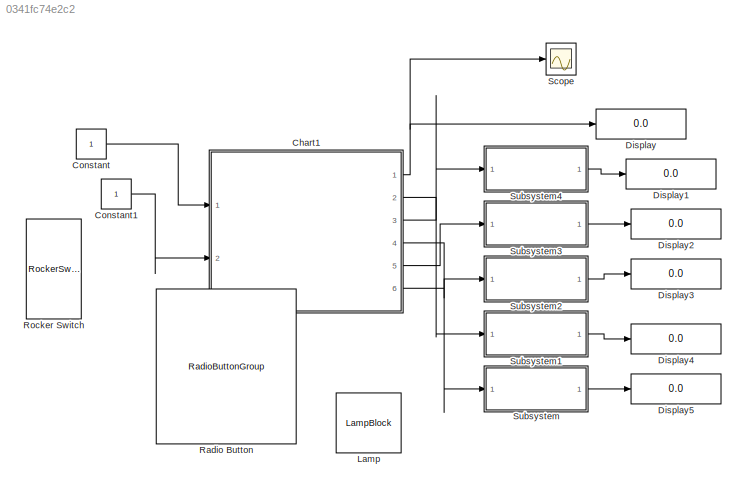
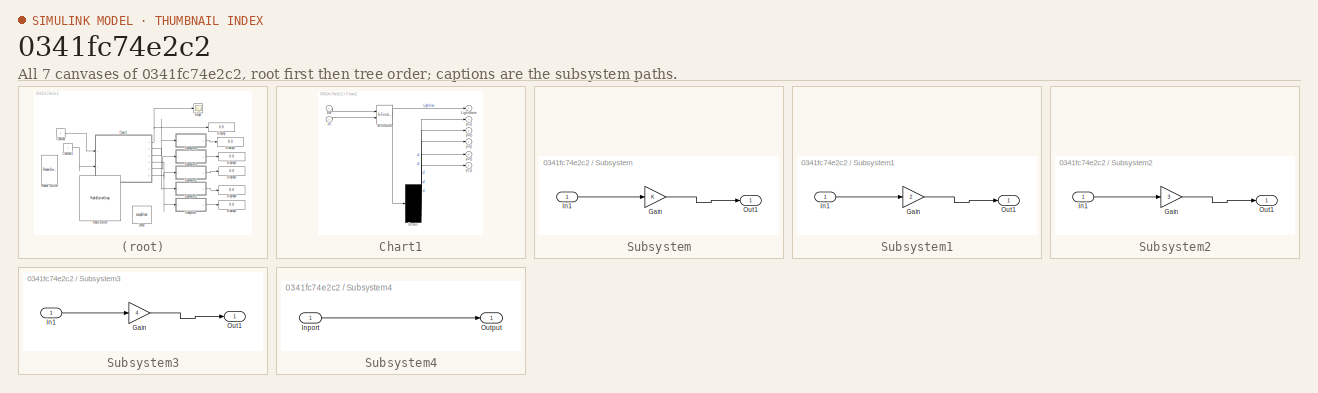
[diagram: thumbnail index - all 7 canvases of the model, root first then tree order]
MODEL slx_0341fc74e2c2
KIND model
CONFIG AbsTol = auto
CONFIG EnableMultiTasking = off
CONFIG FixedStep = auto
CONFIG MaxStep = auto
CONFIG MinStep = auto
CONFIG RelTol = 1e-3
CONFIG SampleTimeConstraint = Unconstrained
CONFIG Solver = VariableStepAuto
CONFIG SolverName = VariableStepAuto
CONFIG StartTime = 0.0
CONFIG StopTime = inf
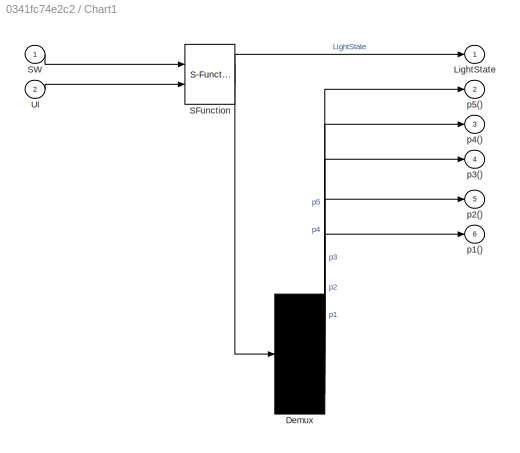
BLOCK [SubSystem] Chart1
  ErrorFcn = Stateflow.Translate.translate
  PermitHierarchicalResolution = ExplicitOnly
  PortSchema = {"entries":[{"content":{"sides":[{"content":{"connectorIds":["In1","In2"]},"type":"ConnectorPlacement.EquallySpacedRectSide","uuid":"6c00c208-a287-4450-85a3-dae870942672"},{"content":{"connectorIds":["Out1","Out2","Out4","Out5","Out6","Out3"],"side":"RIGHT"},"type":"ConnectorPlacement.EquallySpacedRectSide","uuid":"88742340-dddc-44b8-8949-c8c9aae9c67f"},{"content":{"connectorIds":[],"side":"TOP"},...<+283ch>
  Ports = [2, 6]
  RequestExecContextInheritance = off
  SFBlockType = Chart
  TreatAsAtomicUnit = on
BLOCK [Demux] Chart1/ Demux 
  Outputs = 5
  Ports = [1, 5]
BLOCK [S-Function] Chart1/ SFunction 
  EnableBusSupport = on
  FunctionName = sf_sfun
  PortCounts = [2 2]
  Ports = [2, 2]
  SFcnIsStateOwnerBlock = off
  SFunctionDeploymentMode = off
  Tag = Stateflow S-Function 1
BLOCK [Outport] Chart1/LightState
BLOCK [Inport] Chart1/SW
BLOCK [Inport] Chart1/UI
  Port = 2
BLOCK [Outport] Chart1/p1()
  Port = 6
BLOCK [Outport] Chart1/p2()
  Port = 5
BLOCK [Outport] Chart1/p3()
  Port = 4
BLOCK [Outport] Chart1/p4()
  Port = 3
BLOCK [Outport] Chart1/p5()
  Port = 2
BLOCK [Constant] Constant
BLOCK [Constant] Constant1
BLOCK [Display] Display
  Decimation = 1
  Ports = [1]
BLOCK [Display] Display1
  Decimation = 1
  Ports = [1]
BLOCK [Display] Display2
  Decimation = 1
  Ports = [1]
BLOCK [Display] Display3
  Decimation = 1
  Ports = [1]
BLOCK [Display] Display4
  Decimation = 1
  Ports = [1]
BLOCK [Display] Display5
  Decimation = 1
  Ports = [1]
BLOCK [LampBlock] Lamp
BLOCK [RadioButtonGroup] Radio Button
  ButtonGroupName = Group
BLOCK [RockerSwitchBlock] Rocker Switch
BLOCK [Scope] Scope
  Floating = off
  NumInputPorts = 1
  Ports = [1]
  ScopeSpecificationString = Simulink.scopes.TimeScopeBlockCfg('CurrentConfiguration', extmgr.ConfigurationSet(extmgr.Configuration('Core','General UI',true),extmgr.Configuration('Core','Source UI',true),extmgr.Configuration('Sources','WiredSimulink',true),extmgr.Configuration('Visuals','Time Domain',true),extmgr.Configuration('Tools','Plot Navigation',true),extmgr.Configuration('Tools','Measurements',true)),'Version','2020a'...<+1ch>
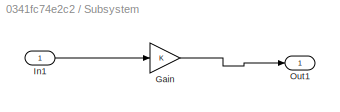
BLOCK [SubSystem] Subsystem
  Ports = [1, 1]
  RequestExecContextInheritance = off
BLOCK [Gain] Subsystem/Gain
BLOCK [Inport] Subsystem/In1
BLOCK [Outport] Subsystem/Out1
BLOCK [SubSystem] Subsystem1
  Ports = [1, 1]
  RequestExecContextInheritance = off
BLOCK [Gain] Subsystem1/Gain
  Gain = 2
BLOCK [Inport] Subsystem1/In1
BLOCK [Outport] Subsystem1/Out1
BLOCK [SubSystem] Subsystem2
  Ports = [1, 1]
  RequestExecContextInheritance = off
BLOCK [Gain] Subsystem2/Gain
  Gain = 3
BLOCK [Inport] Subsystem2/In1
BLOCK [Outport] Subsystem2/Out1
BLOCK [SubSystem] Subsystem3
  Ports = [1, 1]
  RequestExecContextInheritance = off
BLOCK [Gain] Subsystem3/Gain
  Gain = 4
BLOCK [Inport] Subsystem3/In1
BLOCK [Outport] Subsystem3/Out1
BLOCK [SubSystem] Subsystem4
  Ports = [1, 1]
  RequestExecContextInheritance = off
BLOCK [Inport] Subsystem4/Inport
BLOCK [Outport] Subsystem4/Output
NET Chart1:1 -> Display:1, Scope:1
LINE Chart1:2 -> Subsystem1:1
LINE Chart1:3 -> Subsystem4:1
LINE Chart1:4 -> Subsystem:1
LINE Chart1:5 -> Subsystem3:1
LINE Chart1:6 -> Subsystem2:1
LINE Constant1:1 -> Chart1:2
LINE Constant:1 -> Chart1:1
LINE Subsystem/Gain:1 -> Subsystem/Out1:1
LINE Subsystem/In1:1 -> Subsystem/Gain:1
LINE Subsystem1/Gain:1 -> Subsystem1/Out1:1
LINE Subsystem1/In1:1 -> Subsystem1/Gain:1
LINE Subsystem1:1 -> Display4:1
LINE Subsystem2/Gain:1 -> Subsystem2/Out1:1
LINE Subsystem2/In1:1 -> Subsystem2/Gain:1
LINE Subsystem2:1 -> Display3:1
LINE Subsystem3/Gain:1 -> Subsystem3/Out1:1
LINE Subsystem3/In1:1 -> Subsystem3/Gain:1
LINE Subsystem3:1 -> Display2:1
LINE Subsystem4/Inport:1 -> Subsystem4/Output:1
LINE Subsystem4:1 -> Display1:1
LINE Subsystem:1 -> Display5:1
note: NET lines group one-source signal fan-out (src -> all destinations, sorted); 1:1 wires keep LINE
CHART Chart1 states=9 transitions=30
  STATE_LABEL 'off\nentry:\nLightState=0;\n'
  STATE_LABEL 'on\nentry:\nLightState=1;\n'
  STATE_LABEL 'user_interface\n\n'
  STATE_LABEL '{OUT=5}'
  STATE_LABEL '[UI==5 && SW==1]'
  STATE_LABEL '[UI==1 && SW==1]'
  STATE_LABEL '{OUT=1}'
  STATE_LABEL '[UI==2 && SW==1]'
  STATE_LABEL '[UI==4 && SW==1]'
  STATE_LABEL '[UI==3 && SW==1]'
  STATE_LABEL '{OUT=2}'
  STATE_LABEL '{OUT=4}'
  STATE_LABEL '{OUT=3}'
  STATE_LABEL 'floor_state\n'
  STATE_LABEL 'Floor_1\nen:p1;\ndu:p1;'
  STATE_LABEL 'Floor_2\nen:p2;\ndu:p2;'
  STATE_LABEL 'Floor_3\nen:p3;\ndu:p3;'
  STATE_LABEL 'Floor_5\nen:p5;\ndu:p5;'
  STATE_LABEL 'Floor_4\nen:p4;\ndu:p4;'
  STATE_LABEL '[OUT==3]'
  STATE_LABEL '[OUT==2]'
  STATE_LABEL '[OUT==2]'
  STATE_LABEL '[OUT==1]'
  STATE_LABEL '[OUT==5]'
  STATE_LABEL '[OUT==1]'
  STATE_LABEL '[OUT==3]'
  STATE_LABEL '[OUT==4]'
  STATE_LABEL '[OUT==5]'
  STATE_LABEL '[OUT==4]'
  STATE_LABEL 'user_interface\n\n'
  STATE_LABEL '{OUT=5}'
  STATE_LABEL '[UI==5 && SW==1]'
  STATE_LABEL '[UI==1 && SW==1]'
  STATE_LABEL '{OUT=1}'
  STATE_LABEL '[UI==2 && SW==1]'
  STATE_LABEL '[UI==4 && SW==1]'
  STATE_LABEL '[UI==3 && SW==1]'
  STATE_LABEL '{OUT=2}'
  STATE_LABEL '{OUT=4}'
  STATE_LABEL '{OUT=3}'
CHART  states=0 transitions=0
